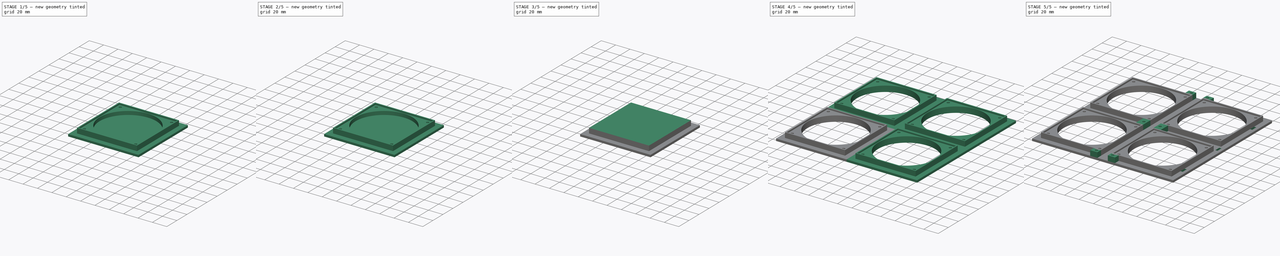
[diagram: build sequence overview — one tinted view per stage of 5, left to right]
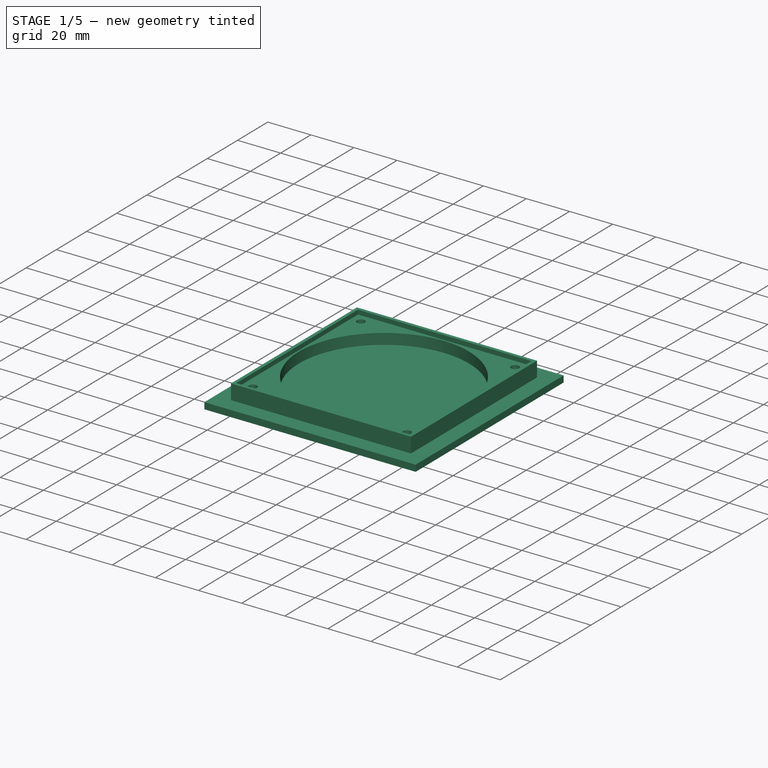
[diagram: stage 1 of 5 — iso view after this stage's code; geometry added in this stage tinted green]
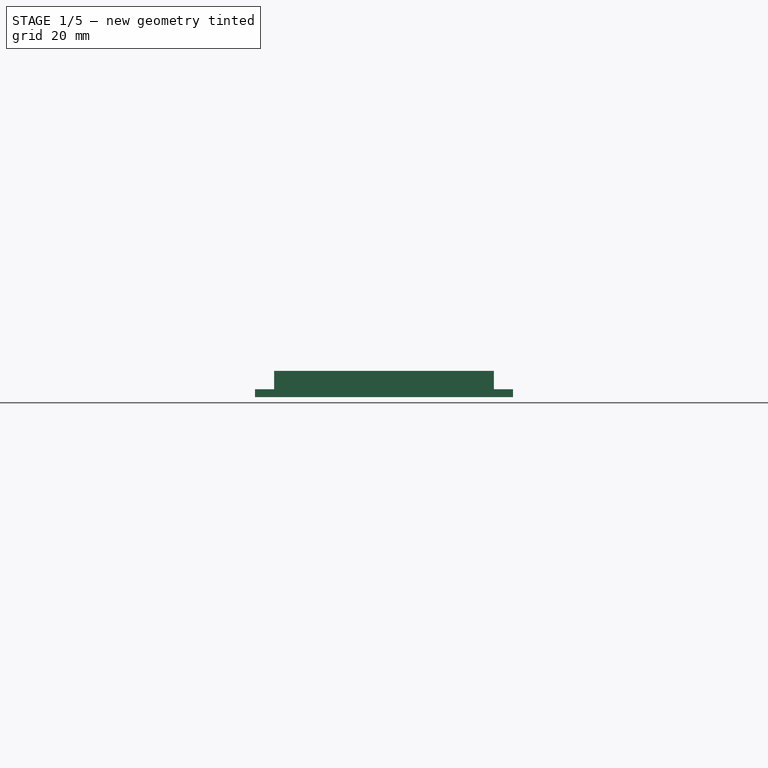
[diagram: stage 1 of 5 — front view after this stage's code; geometry added in this stage tinted green]
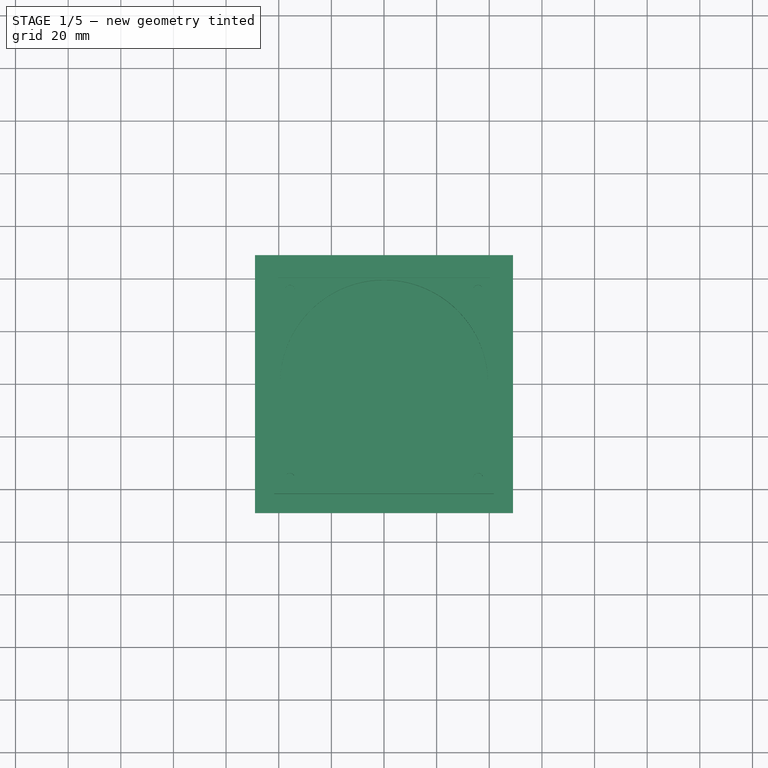
[diagram: stage 1 of 5 — top view after this stage's code; geometry added in this stage tinted green]
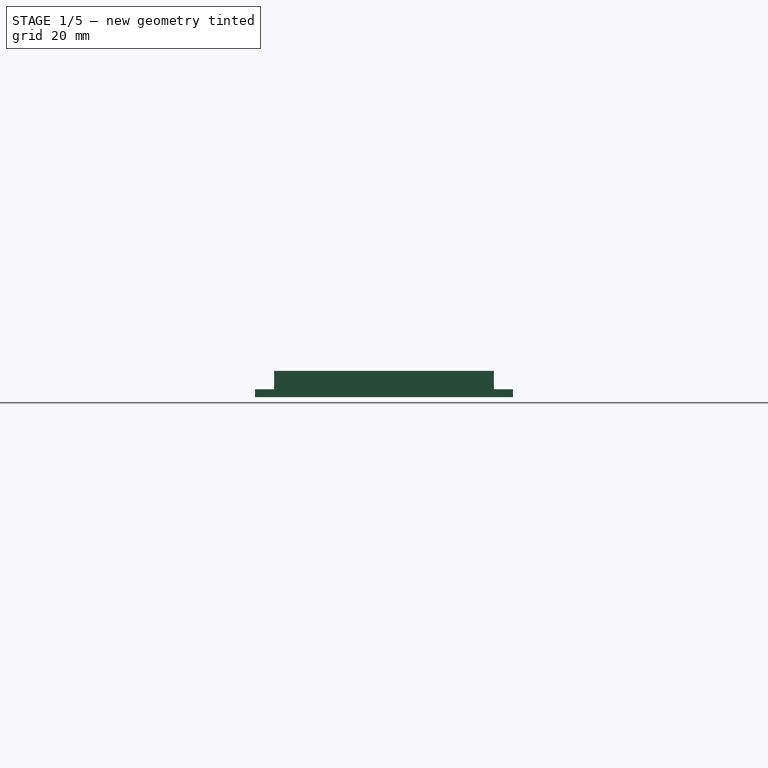
[diagram: stage 1 of 5 — right view after this stage's code; geometry added in this stage tinted green]
FCSTD DOCUMENT  (FreeCAD 0.19R19180 (Git))
Label: fan_holder_mk2
License: All rights reserved
LicenseURL: http://en.wikipedia.org/wiki/All_rights_reserved
objects: Sketcher::SketchObject×30, PartDesign::Pocket×19, PartDesign::Pad×11, PartDesign::Chamfer×6, PartDesign::Body×5, Part::MultiFuse×1, PartDesign::FeatureBase×1
note: 103 computed .brp shape members not serialized (recipe doc carries the construction recipe); baked Part::Feature solids carry a one-line shape summary decoded from their .brp

FEATURE [PartDesign::Body] Body001
  Group = -> [Sketch009,Pad003,Sketch006,Pad002,Sketch011,Pocket007,Sketch007,Pocket004,Sketch010,Pocket006,Sketch008,Pocket005,Chamfer001]
  Origin = -> Origin001
  Placement = pos=(98,0,0) rot=(0,0,1;0rad)
  Tip = -> Chamfer001
FEATURE [Sketcher::SketchObject] Sketch015
  MapMode = 5
  Support = -> [XY_Plane002]
  sketch-geometry (4):
    g0: LineSegment StartX=-49 StartY=49 StartZ=0 EndX=49 EndY=49 EndZ=0
    g1: LineSegment StartX=49 StartY=49 StartZ=0 EndX=49 EndY=-49 EndZ=0
    g2: LineSegment StartX=49 StartY=-49 StartZ=0 EndX=-49 EndY=-49 EndZ=0
    g3: LineSegment StartX=-49 StartY=-49 StartZ=0 EndX=-49 EndY=49 EndZ=0
  constraints (12):
    c: Coincident(g0,g1)
    c: Coincident(g1,g2)
    c: Coincident(g2,g3)
    c: Coincident(g3,g0)
    c: Horizontal(g0)
    c: Horizontal(g2)
    c: Vertical(g1)
    c: Vertical(g3)
    c: Equal(g0,g1)
    c: DistanceX(g0,g-1) = 49
    c: DistanceX(g0,g0) = 98
    c: DistanceY(g-1,g0) = 49
FEATURE [PartDesign::Pad] Pad005
  Length = 3
  Length2 = 100
  Profile = -> Sketch015
  Type = 0
FEATURE [PartDesign::Body] Body002
  Group = -> [Sketch015,Pad005,Sketch012,Pad004,Sketch017,Pocket011,Sketch013,Pocket008,Sketch016,Pocket010,Sketch014,Pocket009,Chamfer002]
  Origin = -> Origin002
  Placement = pos=(0,98,0) rot=(0,0,1;0rad)
  Tip = -> Chamfer002
FEATURE [Sketcher::SketchObject] Sketch021
  MapMode = 5
  Support = -> [XY_Plane003]
  sketch-geometry (4):
    g0: LineSegment StartX=-49 StartY=49 StartZ=0 EndX=49 EndY=49 EndZ=0
    g1: LineSegment StartX=49 StartY=49 StartZ=0 EndX=49 EndY=-49 EndZ=0
    g2: LineSegment StartX=49 StartY=-49 StartZ=0 EndX=-49 EndY=-49 EndZ=0
    g3: LineSegment StartX=-49 StartY=-49 StartZ=0 EndX=-49 EndY=49 EndZ=0
  constraints (12):
    c: Coincident(g0,g1)
    c: Coincident(g1,g2)
    c: Coincident(g2,g3)
    c: Coincident(g3,g0)
    c: Horizontal(g0)
    c: Horizontal(g2)
    c: Vertical(g1)
    c: Vertical(g3)
    c: Equal(g0,g1)
    c: DistanceX(g0,g-1) = 49
    c: DistanceX(g0,g0) = 98
    c: DistanceY(g-1,g0) = 49
FEATURE [PartDesign::Pad] Pad007
  Length = 3
  Length2 = 100
  Profile = -> Sketch021
  Type = 0
FEATURE [Sketcher::SketchObject] Sketch018
  MapMode = 5
  Placement = pos=(0,0,3) rot=(0,0,1;0rad)
  Support = -> [Pad007]
  sketch-geometry (4):
    g0: LineSegment StartX=-41.75 StartY=41.75 StartZ=0 EndX=41.75 EndY=41.75 EndZ=0
    g1: LineSegment StartX=41.75 StartY=41.75 StartZ=0 EndX=41.75 EndY=-41.75 EndZ=0
    g2: LineSegment StartX=41.75 StartY=-41.75 StartZ=0 EndX=-41.75 EndY=-41.75 EndZ=0
    g3: LineSegment StartX=-41.75 StartY=-41.75 StartZ=0 EndX=-41.75 EndY=41.75 EndZ=0
  constraints (12):
    c: Coincident(g0,g1)
    c: Coincident(g1,g2)
    c: Coincident(g2,g3)
    c: Coincident(g3,g0)
    c: Horizontal(g0)
    c: Horizontal(g2)
    c: Vertical(g1)
    c: Vertical(g3)
    c: Equal(g1,g0)
    c: DistanceX(g0,g0) = 83.5
    c: DistanceX(g0,g-1) = 41.75
    c: DistanceY(g-1,g0) = 41.75
FEATURE [PartDesign::Pad] Pad006
  BaseFeature = -> Pad007
  Length = 7
  Length2 = 100
  Profile = -> Sketch018
  Type = 0
FEATURE [Sketcher::SketchObject] Sketch023
  MapMode = 5
  Placement = pos=(0,0,10) rot=(0,0,1;0rad)
  Support = -> [Pad006]
  sketch-geometry (1):
    g0: Circle CenterX=0 CenterY=0 CenterZ=0 NormalX=0 NormalY=0 NormalZ=1 AngleXU=0 Radius=39.5
  constraints (2):
    c: Coincident(g0,g-1)
    c: Diameter(g0) = 79
FEATURE [PartDesign::Pocket] Pocket015
  BaseFeature = -> Pad006
  Length = 10
  Length2 = 100
  Profile = -> Sketch023
  Type = 0
FEATURE [Sketcher::SketchObject] Sketch019
  MapMode = 5
  Placement = pos=(0,0,10) rot=(0,0,1;0rad)
  Support = -> [Pocket015]
  sketch-geometry (4):
    g0: LineSegment StartX=-40.25 StartY=40.25 StartZ=0 EndX=40.25 EndY=40.25 EndZ=0
    g1: LineSegment StartX=40.25 StartY=40.25 StartZ=0 EndX=40.25 EndY=-40.25 EndZ=0
    g2: LineSegment StartX=40.25 StartY=-40.25 StartZ=0 EndX=-40.25 EndY=-40.25 EndZ=0
    g3: LineSegment StartX=-40.25 StartY=-40.25 StartZ=0 EndX=-40.25 EndY=40.25 EndZ=0
  constraints (12):
    c: Coincident(g0,g1)
    c: Coincident(g1,g2)
    c: Coincident(g2,g3)
    c: Coincident(g3,g0)
    c: Horizontal(g0)
    c: Horizontal(g2)
    c: Vertical(g1)
    c: Vertical(g3)
    c: Equal(g0,g1)
    c: DistanceX(g0,g0) = 80.5
    c: DistanceX(g0,g-1) = 40.25
    c: DistanceY(g-1,g0) = 40.25
FEATURE [PartDesign::Pocket] Pocket012
  BaseFeature = -> Pocket015
  Length = 2
  Length2 = 100
  Profile = -> Sketch019
  Type = 0
FEATURE [Sketcher::SketchObject] Sketch022
  MapMode = 5
  Placement = pos=(0,0,8) rot=(0,0,1;0rad)
  Support = -> [Pocket012]
  sketch-geometry (4):
    g0: Circle CenterX=-35.75 CenterY=35.75 CenterZ=0 NormalX=0 NormalY=0 NormalZ=1 AngleXU=0 Radius=1.85
    g1: Circle CenterX=35.75 CenterY=35.75 CenterZ=0 NormalX=0 NormalY=0 NormalZ=1 AngleXU=0 Radius=1.85
    g2: Circle CenterX=35.75 CenterY=-35.75 CenterZ=0 NormalX=0 NormalY=0 NormalZ=1 AngleXU=0 Radius=1.85
    g3: Circle CenterX=-35.75 CenterY=-35.75 CenterZ=0 NormalX=0 NormalY=0 NormalZ=1 AngleXU=0 Radius=1.85
  constraints (12):
    c: Diameter(g2) = 3.7
    c: Equal(g2,g3)
    c: Equal(g2,g0)
    c: Equal(g2,g1)
    c: Horizontal(g3,g2)
    c: Horizontal(g0,g1)
    c: Vertical(g0,g3)
    c: Vertical(g1,g2)
    c: DistanceY(g3,g-1) = 35.75
    c: DistanceY(g-1,g0) = 35.75
    c: DistanceX(g0,g-1) = 35.75
    c: DistanceX(g-1,g1) = 35.75
FEATURE [PartDesign::Pocket] Pocket014
  BaseFeature = -> Pocket012
  Length = 8
  Length2 = 100
  Profile = -> Sketch022
  Type = 0
FEATURE [Sketcher::SketchObject] Sketch020
  MapMode = 5
  Placement = pos=(0,0,0) rot=(1,0,0;3.14159rad)
  Support = -> [Pocket014]
  sketch-geometry (4):
    g0: Circle CenterX=-35.75 CenterY=35.75 CenterZ=0 NormalX=0 NormalY=0 NormalZ=1 AngleXU=0 Radius=2.75
    g1: Circle CenterX=35.75 CenterY=35.75 CenterZ=0 NormalX=0 NormalY=0 NormalZ=1 AngleXU=0 Radius=2.75
    g2: Circle CenterX=35.75 CenterY=-35.75 CenterZ=0 NormalX=0 NormalY=0 NormalZ=1 AngleXU=0 Radius=2.75
    g3: Circle CenterX=-35.75 CenterY=-35.75 CenterZ=0 NormalX=0 NormalY=0 NormalZ=1 AngleXU=0 Radius=2.75
  constraints (12):
    c: Horizontal(g3,g2)
    c: Horizontal(g0,g1)
    c: Vertical(g3,g0)
    c: Vertical(g2,g1)
    c: DistanceX(g0,g-1) = 35.75
    c: DistanceX(g-1,g1) = 35.75
    c: DistanceY(g2,g-1) = 35.75
    c: DistanceY(g-1,g1) = 35.75
    c: Diameter(g3) = 5.5
    c: Equal(g3,g2)
    c: Equal(g3,g1)
    c: Equal(g3,g0)
FEATURE [PartDesign::Pocket] Pocket013
  BaseFeature = -> Pocket014
  Length = 5
  Length2 = 100
  Profile = -> Sketch020
  Type = 0
FEATURE [PartDesign::Chamfer] Chamfer003
  Base = -> Pocket013 [Edge14,Edge12,Edge13,Edge16]
  BaseFeature = -> Pocket013
  Size = 0.5
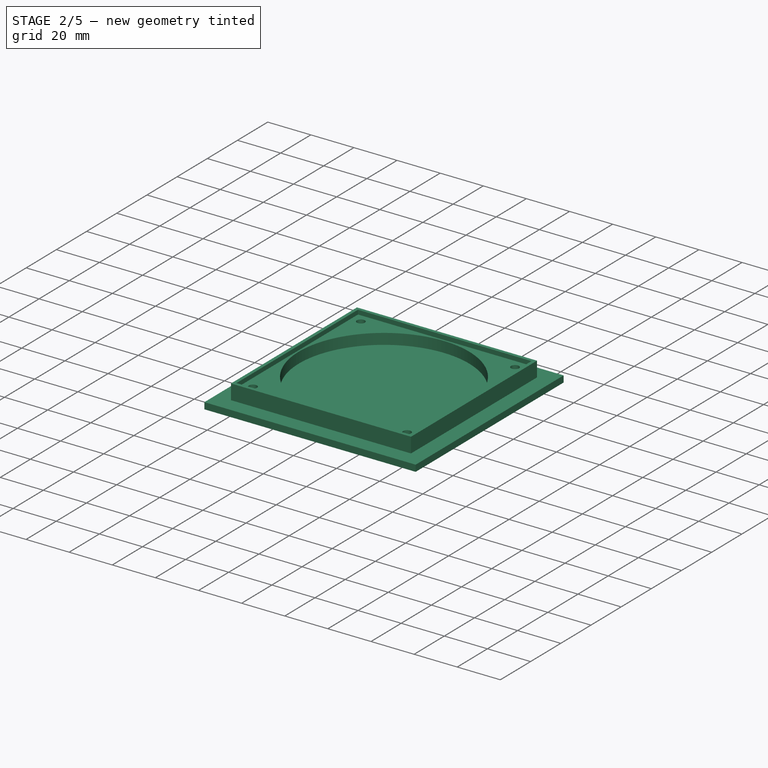
[diagram: stage 2 of 5 — iso view after this stage's code; geometry added in this stage tinted green]
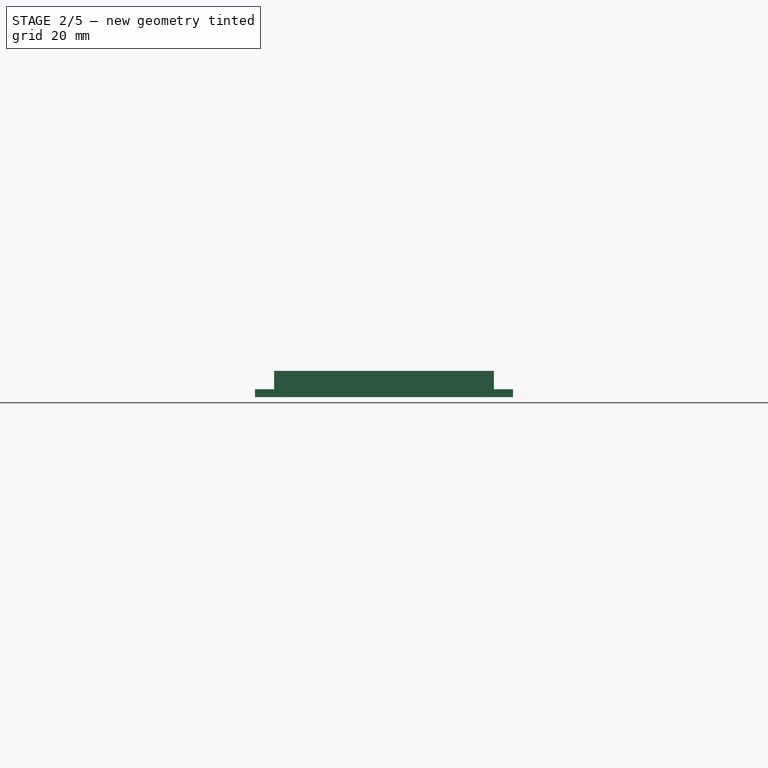
[diagram: stage 2 of 5 — front view after this stage's code; geometry added in this stage tinted green]
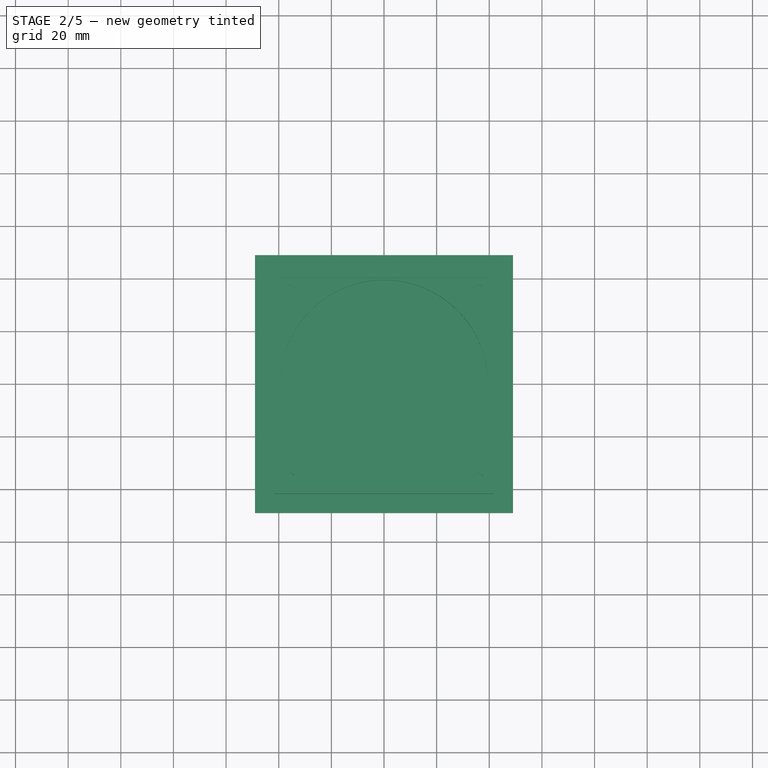
[diagram: stage 2 of 5 — top view after this stage's code; geometry added in this stage tinted green]
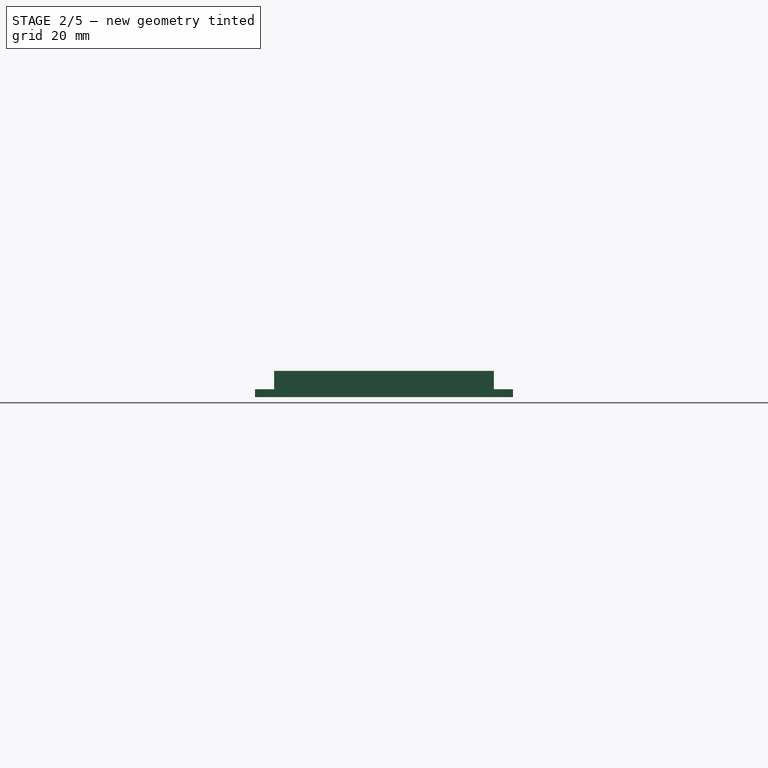
[diagram: stage 2 of 5 — right view after this stage's code; geometry added in this stage tinted green]
FEATURE [PartDesign::Body] Body
  Group = -> [Sketch,Pad,Sketch001,Pad001,Sketch002,Pocket,Sketch003,Pocket001,Sketch004,Pocket002,Sketch005,Pocket003,Chamfer]
  Origin = -> Origin
  Tip = -> Chamfer
FEATURE [Sketcher::SketchObject] Sketch009
  MapMode = 5
  Support = -> [XY_Plane001]
  sketch-geometry (4):
    g0: LineSegment StartX=-49 StartY=49 StartZ=0 EndX=49 EndY=49 EndZ=0
    g1: LineSegment StartX=49 StartY=49 StartZ=0 EndX=49 EndY=-49 EndZ=0
    g2: LineSegment StartX=49 StartY=-49 StartZ=0 EndX=-49 EndY=-49 EndZ=0
    g3: LineSegment StartX=-49 StartY=-49 StartZ=0 EndX=-49 EndY=49 EndZ=0
  constraints (12):
    c: Coincident(g0,g1)
    c: Coincident(g1,g2)
    c: Coincident(g2,g3)
    c: Coincident(g3,g0)
    c: Horizontal(g0)
    c: Horizontal(g2)
    c: Vertical(g1)
    c: Vertical(g3)
    c: Equal(g0,g1)
    c: DistanceX(g0,g-1) = 49
    c: DistanceX(g0,g0) = 98
    c: DistanceY(g-1,g0) = 49
FEATURE [PartDesign::Pad] Pad003
  Length = 3
  Length2 = 100
  Profile = -> Sketch009
  Type = 0
FEATURE [Sketcher::SketchObject] Sketch012
  MapMode = 5
  Placement = pos=(0,0,3) rot=(0,0,1;0rad)
  Support = -> [Pad005]
  sketch-geometry (4):
    g0: LineSegment StartX=-41.75 StartY=41.75 StartZ=0 EndX=41.75 EndY=41.75 EndZ=0
    g1: LineSegment StartX=41.75 StartY=41.75 StartZ=0 EndX=41.75 EndY=-41.75 EndZ=0
    g2: LineSegment StartX=41.75 StartY=-41.75 StartZ=0 EndX=-41.75 EndY=-41.75 EndZ=0
    g3: LineSegment StartX=-41.75 StartY=-41.75 StartZ=0 EndX=-41.75 EndY=41.75 EndZ=0
  constraints (12):
    c: Coincident(g0,g1)
    c: Coincident(g1,g2)
    c: Coincident(g2,g3)
    c: Coincident(g3,g0)
    c: Horizontal(g0)
    c: Horizontal(g2)
    c: Vertical(g1)
    c: Vertical(g3)
    c: Equal(g1,g0)
    c: DistanceX(g0,g0) = 83.5
    c: DistanceX(g0,g-1) = 41.75
    c: DistanceY(g-1,g0) = 41.75
FEATURE [PartDesign::Pad] Pad004
  BaseFeature = -> Pad005
  Length = 7
  Length2 = 100
  Profile = -> Sketch012
  Type = 0
FEATURE [Sketcher::SketchObject] Sketch017
  MapMode = 5
  Placement = pos=(0,0,10) rot=(0,0,1;0rad)
  Support = -> [Pad004]
  sketch-geometry (1):
    g0: Circle CenterX=0 CenterY=0 CenterZ=0 NormalX=0 NormalY=0 NormalZ=1 AngleXU=0 Radius=39.5
  constraints (2):
    c: Coincident(g0,g-1)
    c: Diameter(g0) = 79
FEATURE [PartDesign::Pocket] Pocket011
  BaseFeature = -> Pad004
  Length = 10
  Length2 = 100
  Profile = -> Sketch017
  Type = 0
FEATURE [Sketcher::SketchObject] Sketch013
  MapMode = 5
  Placement = pos=(0,0,10) rot=(0,0,1;0rad)
  Support = -> [Pocket011]
  sketch-geometry (4):
    g0: LineSegment StartX=-40.25 StartY=40.25 StartZ=0 EndX=40.25 EndY=40.25 EndZ=0
    g1: LineSegment StartX=40.25 StartY=40.25 StartZ=0 EndX=40.25 EndY=-40.25 EndZ=0
    g2: LineSegment StartX=40.25 StartY=-40.25 StartZ=0 EndX=-40.25 EndY=-40.25 EndZ=0
    g3: LineSegment StartX=-40.25 StartY=-40.25 StartZ=0 EndX=-40.25 EndY=40.25 EndZ=0
  constraints (12):
    c: Coincident(g0,g1)
    c: Coincident(g1,g2)
    c: Coincident(g2,g3)
    c: Coincident(g3,g0)
    c: Horizontal(g0)
    c: Horizontal(g2)
    c: Vertical(g1)
    c: Vertical(g3)
    c: Equal(g0,g1)
    c: DistanceX(g0,g0) = 80.5
    c: DistanceX(g0,g-1) = 40.25
    c: DistanceY(g-1,g0) = 40.25
FEATURE [PartDesign::Pocket] Pocket008
  BaseFeature = -> Pocket011
  Length = 2
  Length2 = 100
  Profile = -> Sketch013
  Type = 0
FEATURE [Sketcher::SketchObject] Sketch016
  MapMode = 5
  Placement = pos=(0,0,8) rot=(0,0,1;0rad)
  Support = -> [Pocket008]
  sketch-geometry (4):
    g0: Circle CenterX=-35.75 CenterY=35.75 CenterZ=0 NormalX=0 NormalY=0 NormalZ=1 AngleXU=0 Radius=1.85
    g1: Circle CenterX=35.75 CenterY=35.75 CenterZ=0 NormalX=0 NormalY=0 NormalZ=1 AngleXU=0 Radius=1.85
    g2: Circle CenterX=35.75 CenterY=-35.75 CenterZ=0 NormalX=0 NormalY=0 NormalZ=1 AngleXU=0 Radius=1.85
    g3: Circle CenterX=-35.75 CenterY=-35.75 CenterZ=0 NormalX=0 NormalY=0 NormalZ=1 AngleXU=0 Radius=1.85
  constraints (12):
    c: Diameter(g2) = 3.7
    c: Equal(g2,g3)
    c: Equal(g2,g0)
    c: Equal(g2,g1)
    c: Horizontal(g3,g2)
    c: Horizontal(g0,g1)
    c: Vertical(g0,g3)
    c: Vertical(g1,g2)
    c: DistanceY(g3,g-1) = 35.75
    c: DistanceY(g-1,g0) = 35.75
    c: DistanceX(g0,g-1) = 35.75
    c: DistanceX(g-1,g1) = 35.75
FEATURE [PartDesign::Pocket] Pocket010
  BaseFeature = -> Pocket008
  Length = 8
  Length2 = 100
  Profile = -> Sketch016
  Type = 0
FEATURE [Sketcher::SketchObject] Sketch014
  MapMode = 5
  Placement = pos=(0,0,0) rot=(1,0,0;3.14159rad)
  Support = -> [Pocket010]
  sketch-geometry (4):
    g0: Circle CenterX=-35.75 CenterY=35.75 CenterZ=0 NormalX=0 NormalY=0 NormalZ=1 AngleXU=0 Radius=2.75
    g1: Circle CenterX=35.75 CenterY=35.75 CenterZ=0 NormalX=0 NormalY=0 NormalZ=1 AngleXU=0 Radius=2.75
    g2: Circle CenterX=35.75 CenterY=-35.75 CenterZ=0 NormalX=0 NormalY=0 NormalZ=1 AngleXU=0 Radius=2.75
    g3: Circle CenterX=-35.75 CenterY=-35.75 CenterZ=0 NormalX=0 NormalY=0 NormalZ=1 AngleXU=0 Radius=2.75
  constraints (12):
    c: Horizontal(g3,g2)
    c: Horizontal(g0,g1)
    c: Vertical(g3,g0)
    c: Vertical(g2,g1)
    c: DistanceX(g0,g-1) = 35.75
    c: DistanceX(g-1,g1) = 35.75
    c: DistanceY(g2,g-1) = 35.75
    c: DistanceY(g-1,g1) = 35.75
    c: Diameter(g3) = 5.5
    c: Equal(g3,g2)
    c: Equal(g3,g1)
    c: Equal(g3,g0)
FEATURE [PartDesign::Pocket] Pocket009
  BaseFeature = -> Pocket010
  Length = 5
  Length2 = 100
  Profile = -> Sketch014
  Type = 0
FEATURE [PartDesign::Chamfer] Chamfer002
  Base = -> Pocket009 [Edge14,Edge12,Edge13,Edge16]
  BaseFeature = -> Pocket009
  Size = 0.5
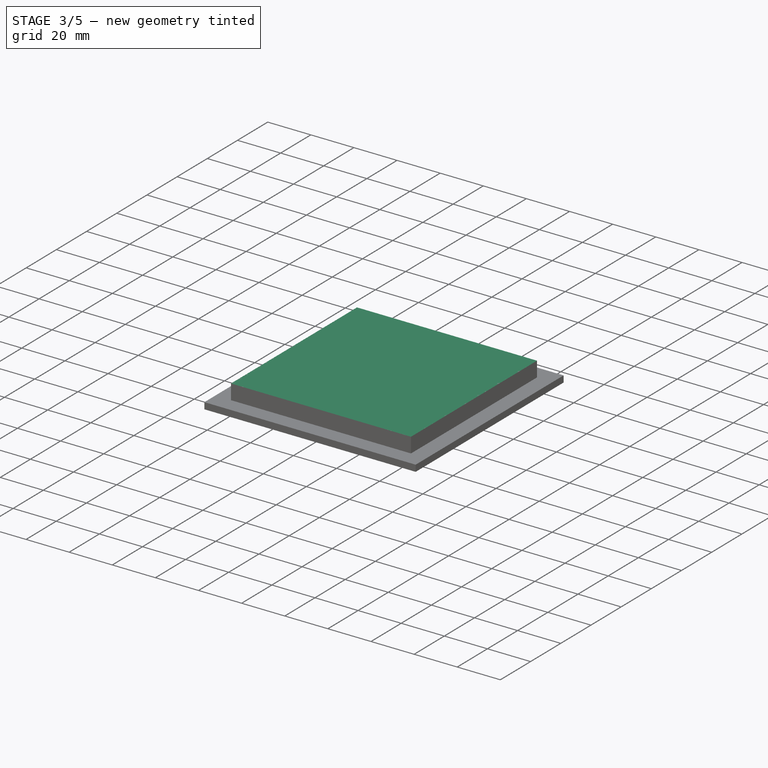
[diagram: stage 3 of 5 — iso view after this stage's code; geometry added in this stage tinted green]
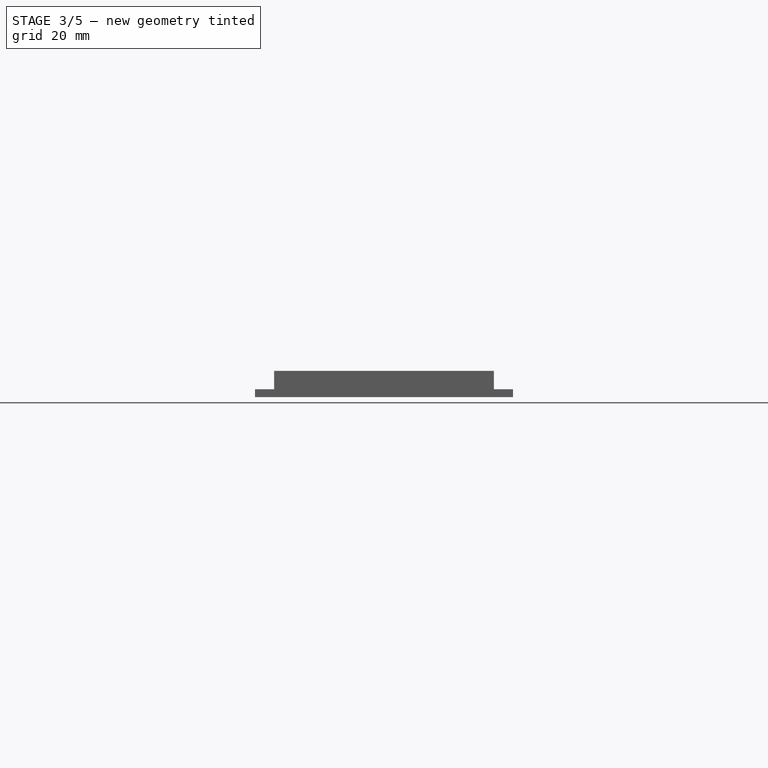
[diagram: stage 3 of 5 — front view after this stage's code; geometry added in this stage tinted green]
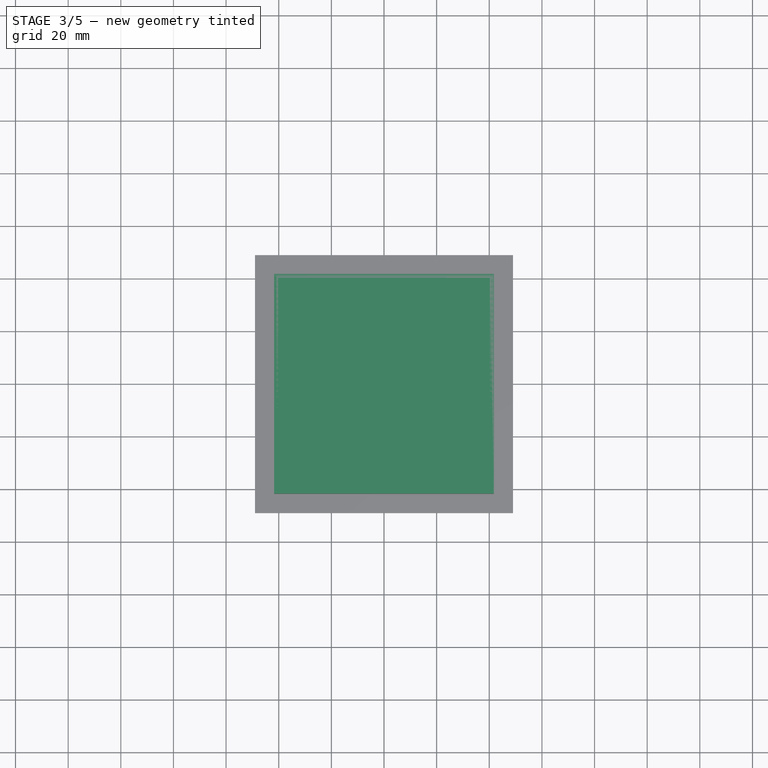
[diagram: stage 3 of 5 — top view after this stage's code; geometry added in this stage tinted green]
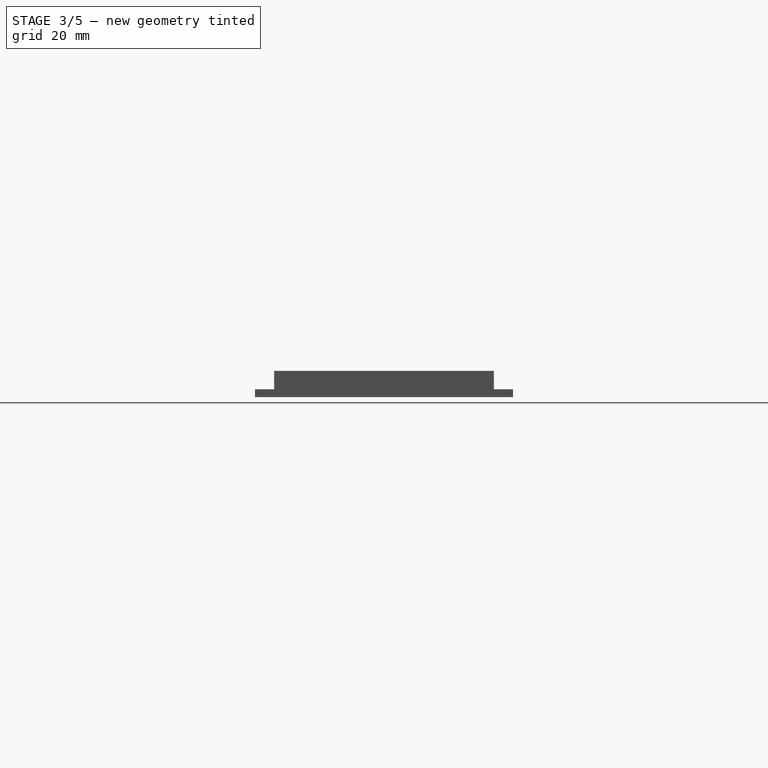
[diagram: stage 3 of 5 — right view after this stage's code; geometry added in this stage tinted green]
FEATURE [Sketcher::SketchObject] Sketch
  MapMode = 5
  Support = -> [XY_Plane]
  sketch-geometry (4):
    g0: LineSegment StartX=-49 StartY=49 StartZ=0 EndX=49 EndY=49 EndZ=0
    g1: LineSegment StartX=49 StartY=49 StartZ=0 EndX=49 EndY=-49 EndZ=0
    g2: LineSegment StartX=49 StartY=-49 StartZ=0 EndX=-49 EndY=-49 EndZ=0
    g3: LineSegment StartX=-49 StartY=-49 StartZ=0 EndX=-49 EndY=49 EndZ=0
  constraints (12):
    c: Coincident(g0,g1)
    c: Coincident(g1,g2)
    c: Coincident(g2,g3)
    c: Coincident(g3,g0)
    c: Horizontal(g0)
    c: Horizontal(g2)
    c: Vertical(g1)
    c: Vertical(g3)
    c: Equal(g0,g1)
    c: DistanceX(g0,g-1) = 49
    c: DistanceX(g0,g0) = 98
    c: DistanceY(g-1,g0) = 49
FEATURE [PartDesign::Pad] Pad
  Length = 3
  Length2 = 100
  Profile = -> Sketch
  Type = 0
FEATURE [Sketcher::SketchObject] Sketch001
  MapMode = 5
  Placement = pos=(0,0,3) rot=(0,0,1;0rad)
  Support = -> [Pad]
  sketch-geometry (4):
    g0: LineSegment StartX=-41.75 StartY=41.75 StartZ=0 EndX=41.75 EndY=41.75 EndZ=0
    g1: LineSegment StartX=41.75 StartY=41.75 StartZ=0 EndX=41.75 EndY=-41.75 EndZ=0
    g2: LineSegment StartX=41.75 StartY=-41.75 StartZ=0 EndX=-41.75 EndY=-41.75 EndZ=0
    g3: LineSegment StartX=-41.75 StartY=-41.75 StartZ=0 EndX=-41.75 EndY=41.75 EndZ=0
  constraints (12):
    c: Coincident(g0,g1)
    c: Coincident(g1,g2)
    c: Coincident(g2,g3)
    c: Coincident(g3,g0)
    c: Horizontal(g0)
    c: Horizontal(g2)
    c: Vertical(g1)
    c: Vertical(g3)
    c: Equal(g1,g0)
    c: DistanceX(g0,g0) = 83.5
    c: DistanceX(g0,g-1) = 41.75
    c: DistanceY(g-1,g0) = 41.75
FEATURE [PartDesign::Pad] Pad001
  BaseFeature = -> Pad
  Length = 7
  Length2 = 100
  Profile = -> Sketch001
  Type = 0
FEATURE [Sketcher::SketchObject] Sketch006
  MapMode = 5
  Placement = pos=(0,0,3) rot=(0,0,1;0rad)
  Support = -> [Pad003]
  sketch-geometry (4):
    g0: LineSegment StartX=-41.75 StartY=41.75 StartZ=0 EndX=41.75 EndY=41.75 EndZ=0
    g1: LineSegment StartX=41.75 StartY=41.75 StartZ=0 EndX=41.75 EndY=-41.75 EndZ=0
    g2: LineSegment StartX=41.75 StartY=-41.75 StartZ=0 EndX=-41.75 EndY=-41.75 EndZ=0
    g3: LineSegment StartX=-41.75 StartY=-41.75 StartZ=0 EndX=-41.75 EndY=41.75 EndZ=0
  constraints (12):
    c: Coincident(g0,g1)
    c: Coincident(g1,g2)
    c: Coincident(g2,g3)
    c: Coincident(g3,g0)
    c: Horizontal(g0)
    c: Horizontal(g2)
    c: Vertical(g1)
    c: Vertical(g3)
    c: Equal(g1,g0)
    c: DistanceX(g0,g0) = 83.5
    c: DistanceX(g0,g-1) = 41.75
    c: DistanceY(g-1,g0) = 41.75
FEATURE [PartDesign::Pad] Pad002
  BaseFeature = -> Pad003
  Length = 7
  Length2 = 100
  Profile = -> Sketch006
  Type = 0
FEATURE [Sketcher::SketchObject] Sketch011
  MapMode = 5
  Placement = pos=(0,0,10) rot=(0,0,1;0rad)
  Support = -> [Pad002]
  sketch-geometry (1):
    g0: Circle CenterX=0 CenterY=0 CenterZ=0 NormalX=0 NormalY=0 NormalZ=1 AngleXU=0 Radius=39.5
  constraints (2):
    c: Coincident(g0,g-1)
    c: Diameter(g0) = 79
FEATURE [PartDesign::Pocket] Pocket007
  BaseFeature = -> Pad002
  Length = 10
  Length2 = 100
  Profile = -> Sketch011
  Type = 0
FEATURE [Sketcher::SketchObject] Sketch007
  MapMode = 5
  Placement = pos=(0,0,10) rot=(0,0,1;0rad)
  Support = -> [Pocket007]
  sketch-geometry (4):
    g0: LineSegment StartX=-40.25 StartY=40.25 StartZ=0 EndX=40.25 EndY=40.25 EndZ=0
    g1: LineSegment StartX=40.25 StartY=40.25 StartZ=0 EndX=40.25 EndY=-40.25 EndZ=0
    g2: LineSegment StartX=40.25 StartY=-40.25 StartZ=0 EndX=-40.25 EndY=-40.25 EndZ=0
    g3: LineSegment StartX=-40.25 StartY=-40.25 StartZ=0 EndX=-40.25 EndY=40.25 EndZ=0
  constraints (12):
    c: Coincident(g0,g1)
    c: Coincident(g1,g2)
    c: Coincident(g2,g3)
    c: Coincident(g3,g0)
    c: Horizontal(g0)
    c: Horizontal(g2)
    c: Vertical(g1)
    c: Vertical(g3)
    c: Equal(g0,g1)
    c: DistanceX(g0,g0) = 80.5
    c: DistanceX(g0,g-1) = 40.25
    c: DistanceY(g-1,g0) = 40.25
FEATURE [PartDesign::Pocket] Pocket004
  BaseFeature = -> Pocket007
  Length = 2
  Length2 = 100
  Profile = -> Sketch007
  Type = 0
FEATURE [Sketcher::SketchObject] Sketch010
  MapMode = 5
  Placement = pos=(0,0,8) rot=(0,0,1;0rad)
  Support = -> [Pocket004]
  sketch-geometry (4):
    g0: Circle CenterX=-35.75 CenterY=35.75 CenterZ=0 NormalX=0 NormalY=0 NormalZ=1 AngleXU=0 Radius=1.85
    g1: Circle CenterX=35.75 CenterY=35.75 CenterZ=0 NormalX=0 NormalY=0 NormalZ=1 AngleXU=0 Radius=1.85
    g2: Circle CenterX=35.75 CenterY=-35.75 CenterZ=0 NormalX=0 NormalY=0 NormalZ=1 AngleXU=0 Radius=1.85
    g3: Circle CenterX=-35.75 CenterY=-35.75 CenterZ=0 NormalX=0 NormalY=0 NormalZ=1 AngleXU=0 Radius=1.85
  constraints (12):
    c: Diameter(g2) = 3.7
    c: Equal(g2,g3)
    c: Equal(g2,g0)
    c: Equal(g2,g1)
    c: Horizontal(g3,g2)
    c: Horizontal(g0,g1)
    c: Vertical(g0,g3)
    c: Vertical(g1,g2)
    c: DistanceY(g3,g-1) = 35.75
    c: DistanceY(g-1,g0) = 35.75
    c: DistanceX(g0,g-1) = 35.75
    c: DistanceX(g-1,g1) = 35.75
FEATURE [PartDesign::Pocket] Pocket006
  BaseFeature = -> Pocket004
  Length = 8
  Length2 = 100
  Profile = -> Sketch010
  Type = 0
FEATURE [Sketcher::SketchObject] Sketch008
  MapMode = 5
  Placement = pos=(0,0,0) rot=(1,0,0;3.14159rad)
  Support = -> [Pocket006]
  sketch-geometry (4):
    g0: Circle CenterX=-35.75 CenterY=35.75 CenterZ=0 NormalX=0 NormalY=0 NormalZ=1 AngleXU=0 Radius=2.75
    g1: Circle CenterX=35.75 CenterY=35.75 CenterZ=0 NormalX=0 NormalY=0 NormalZ=1 AngleXU=0 Radius=2.75
    g2: Circle CenterX=35.75 CenterY=-35.75 CenterZ=0 NormalX=0 NormalY=0 NormalZ=1 AngleXU=0 Radius=2.75
    g3: Circle CenterX=-35.75 CenterY=-35.75 CenterZ=0 NormalX=0 NormalY=0 NormalZ=1 AngleXU=0 Radius=2.75
  constraints (12):
    c: Horizontal(g3,g2)
    c: Horizontal(g0,g1)
    c: Vertical(g3,g0)
    c: Vertical(g2,g1)
    c: DistanceX(g0,g-1) = 35.75
    c: DistanceX(g-1,g1) = 35.75
    c: DistanceY(g2,g-1) = 35.75
    c: DistanceY(g-1,g1) = 35.75
    c: Diameter(g3) = 5.5
    c: Equal(g3,g2)
    c: Equal(g3,g1)
    c: Equal(g3,g0)
FEATURE [PartDesign::Pocket] Pocket005
  BaseFeature = -> Pocket006
  Length = 5
  Length2 = 100
  Profile = -> Sketch008
  Type = 0
FEATURE [PartDesign::Chamfer] Chamfer001
  Base = -> Pocket005 [Edge14,Edge12,Edge13,Edge16]
  BaseFeature = -> Pocket005
  Size = 0.5
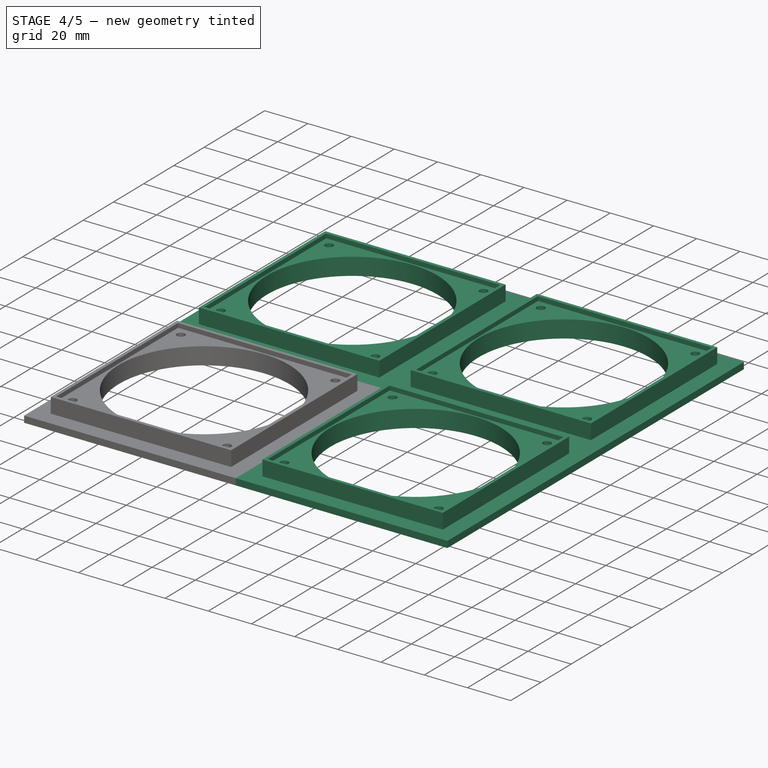
[diagram: stage 4 of 5 — iso view after this stage's code; geometry added in this stage tinted green]
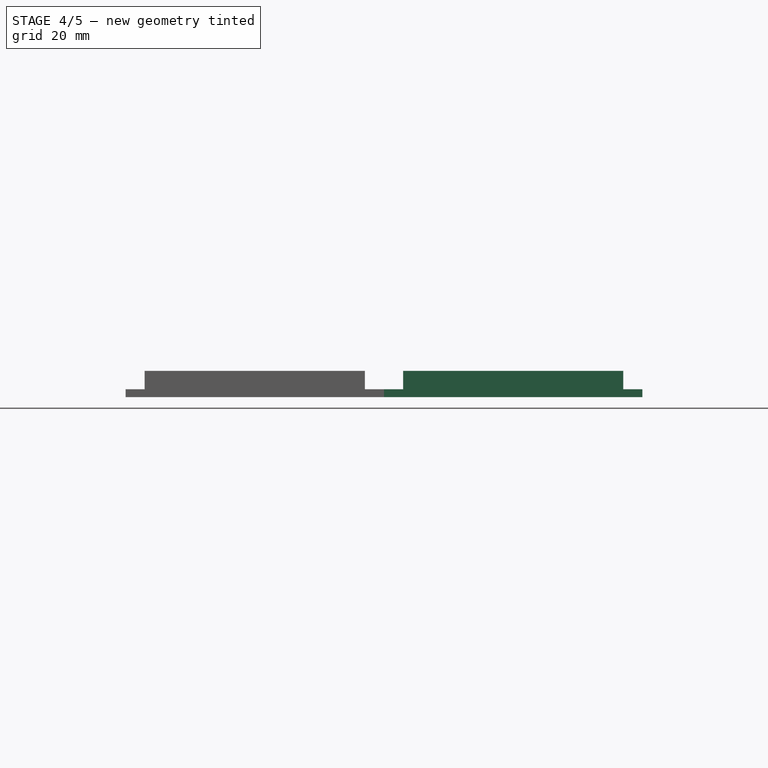
[diagram: stage 4 of 5 — front view after this stage's code; geometry added in this stage tinted green]
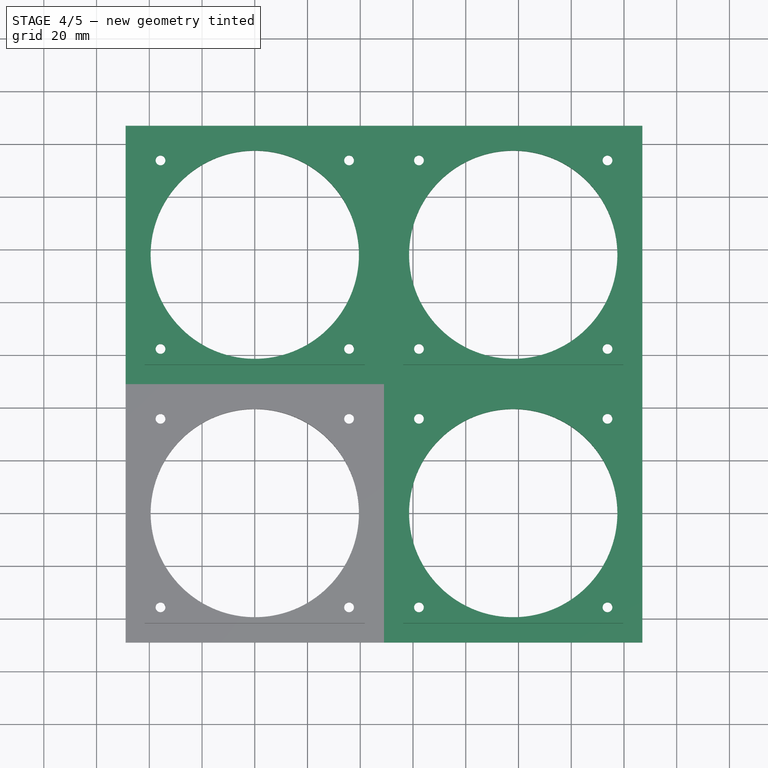
[diagram: stage 4 of 5 — top view after this stage's code; geometry added in this stage tinted green]
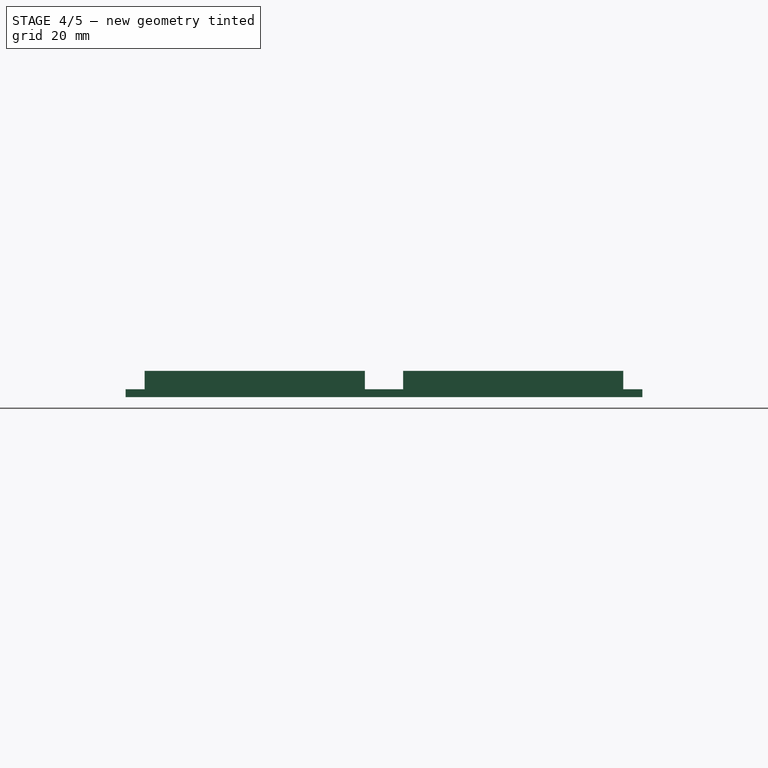
[diagram: stage 4 of 5 — right view after this stage's code; geometry added in this stage tinted green]
FEATURE [Sketcher::SketchObject] Sketch002
  MapMode = 5
  Placement = pos=(0,0,10) rot=(0,0,1;0rad)
  Support = -> [Pad001]
  sketch-geometry (1):
    g0: Circle CenterX=0 CenterY=0 CenterZ=0 NormalX=0 NormalY=0 NormalZ=1 AngleXU=0 Radius=39.5
  constraints (2):
    c: Coincident(g0,g-1)
    c: Diameter(g0) = 79
FEATURE [PartDesign::Pocket] Pocket
  BaseFeature = -> Pad001
  Length = 10
  Length2 = 100
  Profile = -> Sketch002
  Type = 0
FEATURE [Sketcher::SketchObject] Sketch003
  MapMode = 5
  Placement = pos=(0,0,10) rot=(0,0,1;0rad)
  Support = -> [Pocket]
  sketch-geometry (4):
    g0: LineSegment StartX=-40.25 StartY=40.25 StartZ=0 EndX=40.25 EndY=40.25 EndZ=0
    g1: LineSegment StartX=40.25 StartY=40.25 StartZ=0 EndX=40.25 EndY=-40.25 EndZ=0
    g2: LineSegment StartX=40.25 StartY=-40.25 StartZ=0 EndX=-40.25 EndY=-40.25 EndZ=0
    g3: LineSegment StartX=-40.25 StartY=-40.25 StartZ=0 EndX=-40.25 EndY=40.25 EndZ=0
  constraints (12):
    c: Coincident(g0,g1)
    c: Coincident(g1,g2)
    c: Coincident(g2,g3)
    c: Coincident(g3,g0)
    c: Horizontal(g0)
    c: Horizontal(g2)
    c: Vertical(g1)
    c: Vertical(g3)
    c: Equal(g0,g1)
    c: DistanceX(g0,g0) = 80.5
    c: DistanceX(g0,g-1) = 40.25
    c: DistanceY(g-1,g0) = 40.25
FEATURE [PartDesign::Pocket] Pocket001
  BaseFeature = -> Pocket
  Length = 2
  Length2 = 100
  Profile = -> Sketch003
  Type = 0
FEATURE [Sketcher::SketchObject] Sketch004
  MapMode = 5
  Placement = pos=(0,0,8) rot=(0,0,1;0rad)
  Support = -> [Pocket001]
  sketch-geometry (4):
    g0: Circle CenterX=-35.75 CenterY=35.75 CenterZ=0 NormalX=0 NormalY=0 NormalZ=1 AngleXU=0 Radius=1.85
    g1: Circle CenterX=35.75 CenterY=35.75 CenterZ=0 NormalX=0 NormalY=0 NormalZ=1 AngleXU=0 Radius=1.85
    g2: Circle CenterX=35.75 CenterY=-35.75 CenterZ=0 NormalX=0 NormalY=0 NormalZ=1 AngleXU=0 Radius=1.85
    g3: Circle CenterX=-35.75 CenterY=-35.75 CenterZ=0 NormalX=0 NormalY=0 NormalZ=1 AngleXU=0 Radius=1.85
  constraints (12):
    c: Diameter(g2) = 3.7
    c: Equal(g2,g3)
    c: Equal(g2,g0)
    c: Equal(g2,g1)
    c: Horizontal(g3,g2)
    c: Horizontal(g0,g1)
    c: Vertical(g0,g3)
    c: Vertical(g1,g2)
    c: DistanceY(g3,g-1) = 35.75
    c: DistanceY(g-1,g0) = 35.75
    c: DistanceX(g0,g-1) = 35.75
    c: DistanceX(g-1,g1) = 35.75
FEATURE [PartDesign::Pocket] Pocket002
  BaseFeature = -> Pocket001
  Length = 8
  Length2 = 100
  Profile = -> Sketch004
  Type = 0
FEATURE [Sketcher::SketchObject] Sketch005
  MapMode = 5
  Placement = pos=(0,0,0) rot=(1,0,0;3.14159rad)
  Support = -> [Pocket002]
  sketch-geometry (4):
    g0: Circle CenterX=-35.75 CenterY=35.75 CenterZ=0 NormalX=0 NormalY=0 NormalZ=1 AngleXU=0 Radius=2.75
    g1: Circle CenterX=35.75 CenterY=35.75 CenterZ=0 NormalX=0 NormalY=0 NormalZ=1 AngleXU=0 Radius=2.75
    g2: Circle CenterX=35.75 CenterY=-35.75 CenterZ=0 NormalX=0 NormalY=0 NormalZ=1 AngleXU=0 Radius=2.75
    g3: Circle CenterX=-35.75 CenterY=-35.75 CenterZ=0 NormalX=0 NormalY=0 NormalZ=1 AngleXU=0 Radius=2.75
  constraints (12):
    c: Horizontal(g3,g2)
    c: Horizontal(g0,g1)
    c: Vertical(g3,g0)
    c: Vertical(g2,g1)
    c: DistanceX(g0,g-1) = 35.75
    c: DistanceX(g-1,g1) = 35.75
    c: DistanceY(g2,g-1) = 35.75
    c: DistanceY(g-1,g1) = 35.75
    c: Diameter(g3) = 5.5
    c: Equal(g3,g2)
    c: Equal(g3,g1)
    c: Equal(g3,g0)
FEATURE [PartDesign::Pocket] Pocket003
  BaseFeature = -> Pocket002
  Length = 5
  Length2 = 100
  Profile = -> Sketch005
  Type = 0
FEATURE [PartDesign::Chamfer] Chamfer
  Base = -> Pocket003 [Edge14,Edge12,Edge13,Edge16]
  BaseFeature = -> Pocket003
  Size = 0.5
FEATURE [PartDesign::Body] Body003
  Group = -> [Sketch021,Pad007,Sketch018,Pad006,Sketch023,Pocket015,Sketch019,Pocket012,Sketch022,Pocket014,Sketch020,Pocket013,Chamfer003]
  Origin = -> Origin003
  Placement = pos=(98,98,0) rot=(0,0,1;0rad)
  Tip = -> Chamfer003
FEATURE [Part::MultiFuse] Fusion
  Shapes = -> [Body,Body001,Body002,Body003]
FEATURE [PartDesign::FeatureBase] BaseFeature
  BaseFeature = -> Fusion
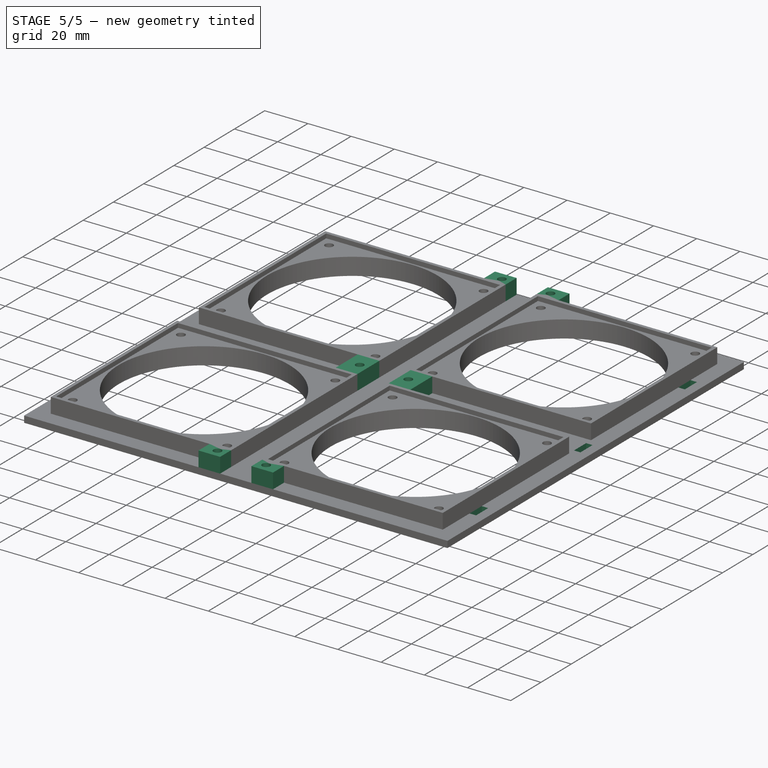
[diagram: stage 5 of 5 — iso view after this stage's code; geometry added in this stage tinted green]
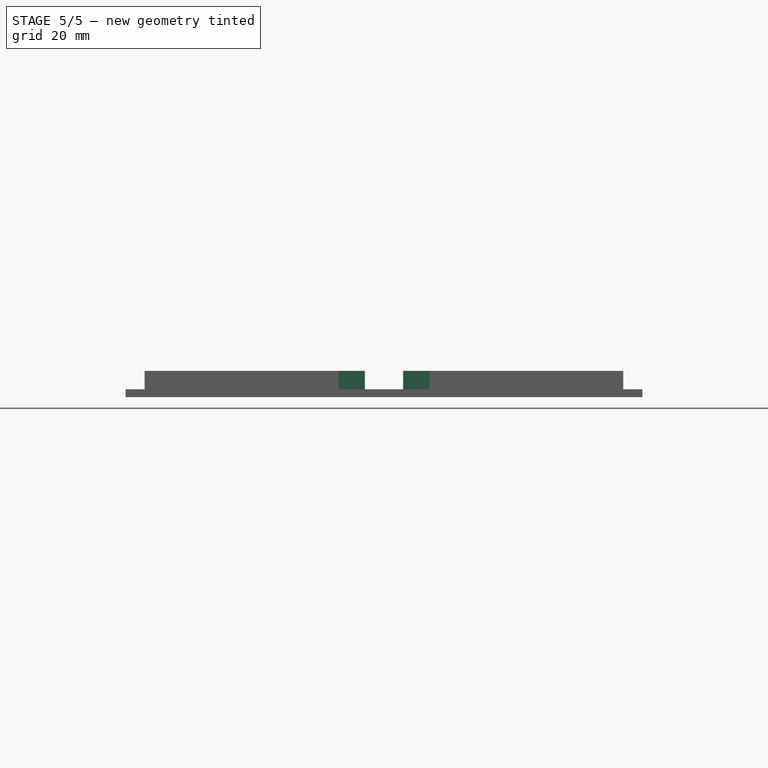
[diagram: stage 5 of 5 — front view after this stage's code; geometry added in this stage tinted green]
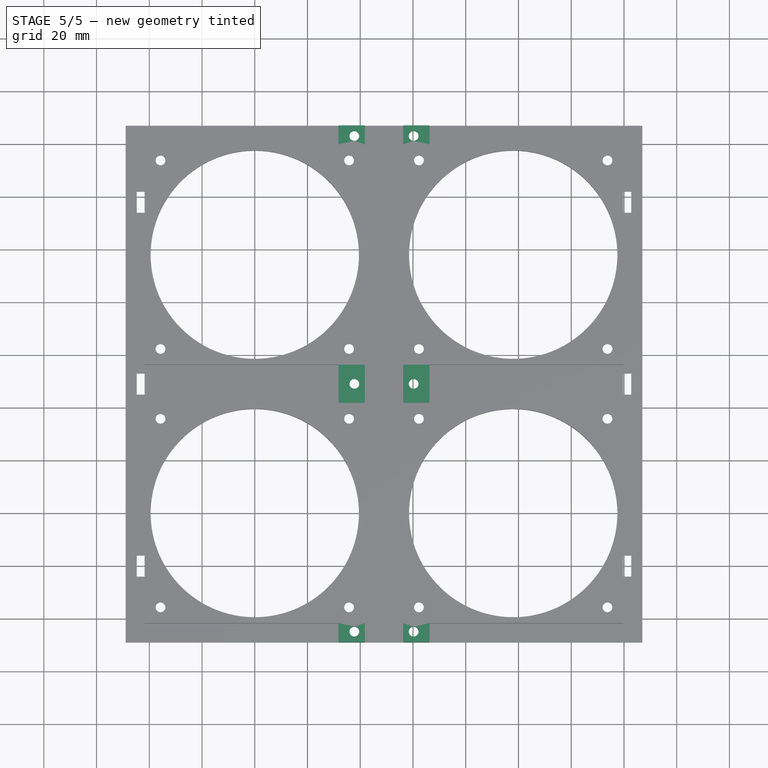
[diagram: stage 5 of 5 — top view after this stage's code; geometry added in this stage tinted green]
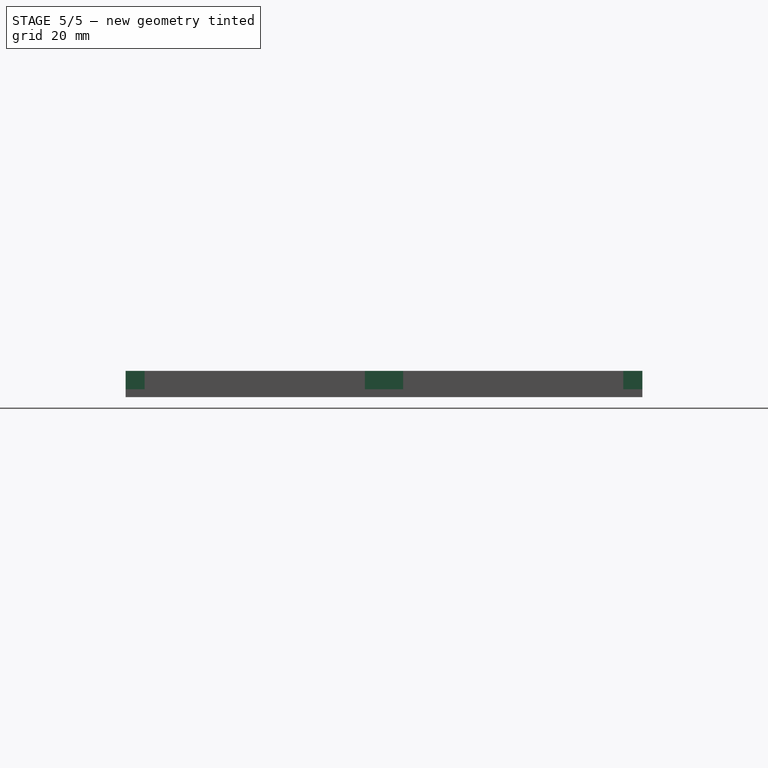
[diagram: stage 5 of 5 — right view after this stage's code; geometry added in this stage tinted green]
FEATURE [Sketcher::SketchObject] Sketch024
  ExternalGeometry = -> [BaseFeature]
  MapMode = 5
  Placement = pos=(0,0,3) rot=(0,0,1;0rad)
  Support = -> [BaseFeature]
  sketch-geometry (24):
    g0: LineSegment StartX=-44.75 StartY=-16 StartZ=0 EndX=-41.75 EndY=-16 EndZ=0
    g1: LineSegment StartX=-41.75 StartY=-16 StartZ=0 EndX=-41.75 EndY=-24 EndZ=0
    g2: LineSegment StartX=-41.75 StartY=-24 StartZ=0 EndX=-44.75 EndY=-24 EndZ=0
    g3: LineSegment StartX=-44.75 StartY=-24 StartZ=0 EndX=-44.75 EndY=-16 EndZ=0
    g4: LineSegment StartX=139.75 StartY=-16 StartZ=0 EndX=142.75 EndY=-16 EndZ=0
    g5: LineSegment StartX=142.75 StartY=-16 StartZ=0 EndX=142.75 EndY=-24 EndZ=0
    g6: LineSegment StartX=142.75 StartY=-24 StartZ=0 EndX=139.75 EndY=-24 EndZ=0
    g7: LineSegment StartX=139.75 StartY=-24 StartZ=0 EndX=139.75 EndY=-16 EndZ=0
    g8: LineSegment StartX=139.75 StartY=53 StartZ=0 EndX=142.75 EndY=53 EndZ=0
    g9: LineSegment StartX=142.75 StartY=53 StartZ=0 EndX=142.75 EndY=45 EndZ=0
    g10: LineSegment StartX=142.75 StartY=45 StartZ=0 EndX=139.75 EndY=45 EndZ=0
    g11: LineSegment StartX=139.75 StartY=45 StartZ=0 EndX=139.75 EndY=53 EndZ=0
    g12: LineSegment StartX=-44.75 StartY=53 StartZ=0 EndX=-41.75 EndY=53 EndZ=0
    g13: LineSegment StartX=-41.75 StartY=53 StartZ=0 EndX=-41.75 EndY=45 EndZ=0
    g14: LineSegment StartX=-41.75 StartY=45 StartZ=0 EndX=-44.75 EndY=45 EndZ=0
    g15: LineSegment StartX=-44.75 StartY=45 StartZ=0 EndX=-44.75 EndY=53 EndZ=0
    g16: LineSegment StartX=-44.75 StartY=122 StartZ=0 EndX=-41.75 EndY=122 EndZ=0
    g17: LineSegment StartX=-41.75 StartY=122 StartZ=0 EndX=-41.75 EndY=114 EndZ=0
    g18: LineSegment StartX=-41.75 StartY=114 StartZ=0 EndX=-44.75 EndY=114 EndZ=0
    g19: LineSegment StartX=-44.75 StartY=114 StartZ=0 EndX=-44.75 EndY=122 EndZ=0
    g20: LineSegment StartX=139.75 StartY=122 StartZ=0 EndX=142.75 EndY=122 EndZ=0
    g21: LineSegment StartX=142.75 StartY=122 StartZ=0 EndX=142.75 EndY=114 EndZ=0
    g22: LineSegment StartX=142.75 StartY=114 StartZ=0 EndX=139.75 EndY=114 EndZ=0
    g23: LineSegment StartX=139.75 StartY=114 StartZ=0 EndX=139.75 EndY=122 EndZ=0
  constraints (72):
    c: Coincident(g0,g1)
    c: Coincident(g1,g2)
    c: Coincident(g2,g3)
    c: Coincident(g3,g0)
    c: Horizontal(g0)
    c: Horizontal(g2)
    c: Vertical(g1)
    c: Vertical(g3)
    c: Coincident(g4,g5)
    c: Coincident(g5,g6)
    c: Coincident(g6,g7)
    c: Coincident(g7,g4)
    c: Horizontal(g4)
    c: Horizontal(g6)
    c: Vertical(g5)
    c: Vertical(g7)
    c: Coincident(g8,g9)
    c: Coincident(g9,g10)
    c: Coincident(g10,g11)
    c: Coincident(g11,g8)
    c: Horizontal(g8)
    c: Horizontal(g10)
    c: Vertical(g9)
    c: Vertical(g11)
    c: Coincident(g12,g13)
    c: Coincident(g13,g14)
    c: Coincident(g14,g15)
    c: Coincident(g15,g12)
    c: Horizontal(g12)
    c: Horizontal(g14)
    c: Vertical(g13)
    c: Vertical(g15)
    c: Coincident(g16,g17)
    c: Coincident(g17,g18)
    c: Coincident(g18,g19)
    c: Coincident(g19,g16)
    c: Horizontal(g16)
    c: Horizontal(g18)
    c: Vertical(g17)
    c: Vertical(g19)
    c: Coincident(g20,g21)
    c: Coincident(g21,g22)
    c: Coincident(g22,g23)
    c: Coincident(g23,g20)
    c: Horizontal(g20)
    c: Horizontal(g22)
    c: Vertical(g21)
    c: Vertical(g23)
    c: Equal(g20,g8)
    c: Equal(g8,g4)
    c: Equal(g4,g0)
    c: Equal(g0,g12)
    c: Equal(g12,g16)
    c: Equal(g17,g23)
    c: Equal(g23,g11)
    c: Equal(g11,g13)
    c: Equal(g13,g1)
    c: Equal(g1,g7)
    c: DistanceX(g0,g0) = 3
    c: DistanceY(g3,g3) = 8
    c: Horizontal(g1,g6)
    c: Horizontal(g10,g13)
    c: Horizontal(g16,g20)
    c: Vertical(g17,g13)
    c: Vertical(g13,g1)
    c: Vertical(g6,g10)
    c: Vertical(g10,g22)
    c: DistanceY(g-9,g12) = 4
    c: DistanceY(g-6,g2) = 25
    c: DistanceY(g16,g-3) = 25
    c: Vertical(g-8,g16)
    c: Vertical(g20,g-7)
FEATURE [PartDesign::Pocket] Pocket016
  BaseFeature = -> BaseFeature
  Length = 5
  Length2 = 100
  Profile = -> Sketch024
  Type = 0
FEATURE [Sketcher::SketchObject] Sketch025
  ExternalGeometry = -> [Pocket016]
  MapMode = 5
  Placement = pos=(0,41.75,0) rot=(0,0.707107,0.707107;3.14159rad)
  Support = -> [Pocket016]
  sketch-geometry (8):
    g0: LineSegment StartX=-66.25 StartY=3 StartZ=0 EndX=-56.25 EndY=3 EndZ=0
    g1: LineSegment StartX=-56.25 StartY=3 StartZ=0 EndX=-56.25 EndY=10 EndZ=0
    g2: LineSegment StartX=-56.25 StartY=10 StartZ=0 EndX=-66.25 EndY=10 EndZ=0
    g3: LineSegment StartX=-66.25 StartY=10 StartZ=0 EndX=-66.25 EndY=3 EndZ=0
    g4: LineSegment StartX=-31.75 StartY=3 StartZ=0 EndX=-41.75 EndY=3 EndZ=0
    g5: LineSegment StartX=-41.75 StartY=3 StartZ=0 EndX=-41.75 EndY=10 EndZ=0
    g6: LineSegment StartX=-41.75 StartY=10 StartZ=0 EndX=-31.75 EndY=10 EndZ=0
    g7: LineSegment StartX=-31.75 StartY=10 StartZ=0 EndX=-31.75 EndY=3 EndZ=0
  constraints (22):
    c: Coincident(g0,g1)
    c: Coincident(g1,g2)
    c: Coincident(g2,g3)
    c: Coincident(g3,g0)
    c: Horizontal(g0)
    c: Horizontal(g2)
    c: Vertical(g1)
    c: Vertical(g3)
    c: Coincident(g4,g5)
    c: Coincident(g5,g6)
    c: Coincident(g6,g7)
    c: Coincident(g7,g4)
    c: Horizontal(g4)
    c: Horizontal(g6)
    c: Vertical(g5)
    c: Vertical(g7)
    c: Coincident(g1,g-6)
    c: Coincident(g5,g-3)
    c: DistanceY(g-4,g4) = 0
    c: DistanceY(g-5,g0) = 0
    c: Equal(g2,g6)
    c: DistanceX(g2,g2) = 10
FEATURE [PartDesign::Pad] Pad008
  BaseFeature = -> Pocket016
  Length = 14.5
  Length2 = 100
  Profile = -> Sketch025
  Type = 0
FEATURE [Sketcher::SketchObject] Sketch026
  ExternalGeometry = -> [Pad008]
  MapMode = 5
  Placement = pos=(0,-41.75,0) rot=(1,0,0;1.5708rad)
  Support = -> [Pad008]
  sketch-geometry (8):
    g0: LineSegment StartX=31.75 StartY=3 StartZ=0 EndX=41.75 EndY=3 EndZ=0
    g1: LineSegment StartX=41.75 StartY=3 StartZ=0 EndX=41.75 EndY=10 EndZ=0
    g2: LineSegment StartX=41.75 StartY=10 StartZ=0 EndX=31.75 EndY=10 EndZ=0
    g3: LineSegment StartX=31.75 StartY=10 StartZ=0 EndX=31.75 EndY=3 EndZ=0
    g4: LineSegment StartX=56.25 StartY=3 StartZ=0 EndX=66.25 EndY=3 EndZ=0
    g5: LineSegment StartX=66.25 StartY=3 StartZ=0 EndX=66.25 EndY=10 EndZ=0
    g6: LineSegment StartX=66.25 StartY=10 StartZ=0 EndX=56.25 EndY=10 EndZ=0
    g7: LineSegment StartX=56.25 StartY=10 StartZ=0 EndX=56.25 EndY=3 EndZ=0
  constraints (22):
    c: Coincident(g0,g1)
    c: Coincident(g1,g2)
    c: Coincident(g2,g3)
    c: Coincident(g3,g0)
    c: Horizontal(g0)
    c: Horizontal(g2)
    c: Vertical(g1)
    c: Vertical(g3)
    c: Coincident(g4,g5)
    c: Coincident(g5,g6)
    c: Coincident(g6,g7)
    c: Coincident(g7,g4)
    c: Horizontal(g4)
    c: Horizontal(g6)
    c: Vertical(g5)
    c: Vertical(g7)
    c: Coincident(g6,g-4)
    c: Coincident(g1,g-3)
    c: Horizontal(g4,g0)
    c: DistanceY(g-5,g0) = 0
    c: DistanceX(g6,g6) = 10
    c: Equal(g2,g6)
FEATURE [PartDesign::Pad] Pad009
  BaseFeature = -> Pad008
  Length = 7.25
  Length2 = 100
  Profile = -> Sketch026
  Type = 0
FEATURE [Sketcher::SketchObject] Sketch027
  ExternalGeometry = -> [Pad009]
  MapMode = 5
  Placement = pos=(0,139.75,0) rot=(0,0.707107,0.707107;3.14159rad)
  Support = -> [Pad009]
  sketch-geometry (8):
    g0: LineSegment StartX=-66.25 StartY=3 StartZ=0 EndX=-56.25 EndY=3 EndZ=0
    g1: LineSegment StartX=-56.25 StartY=3 StartZ=0 EndX=-56.25 EndY=10 EndZ=0
    g2: LineSegment StartX=-56.25 StartY=10 StartZ=0 EndX=-66.25 EndY=10 EndZ=0
    g3: LineSegment StartX=-66.25 StartY=10 StartZ=0 EndX=-66.25 EndY=3 EndZ=0
    g4: LineSegment StartX=-41.75 StartY=3 StartZ=0 EndX=-31.75 EndY=3 EndZ=0
    g5: LineSegment StartX=-31.75 StartY=3 StartZ=0 EndX=-31.75 EndY=10 EndZ=0
    g6: LineSegment StartX=-31.75 StartY=10 StartZ=0 EndX=-41.75 EndY=10 EndZ=0
    g7: LineSegment StartX=-41.75 StartY=10 StartZ=0 EndX=-41.75 EndY=3 EndZ=0
  constraints (22):
    c: Coincident(g0,g1)
    c: Coincident(g1,g2)
    c: Coincident(g2,g3)
    c: Coincident(g3,g0)
    c: Horizontal(g0)
    c: Horizontal(g2)
    c: Vertical(g1)
    c: Vertical(g3)
    c: Coincident(g4,g5)
    c: Coincident(g5,g6)
    c: Coincident(g6,g7)
    c: Coincident(g7,g4)
    c: Horizontal(g4)
    c: Horizontal(g6)
    c: Vertical(g5)
    c: Vertical(g7)
    c: Coincident(g1,g-4)
    c: Coincident(g6,g-3)
    c: Horizontal(g0,g4)
    c: DistanceY(g-5,g0) = 0
    c: Equal(g2,g6)
    c: DistanceX(g2,g2) = 10
FEATURE [PartDesign::Pad] Pad010
  BaseFeature = -> Pad009
  Length = 7.25
  Length2 = 100
  Profile = -> Sketch027
  Type = 0
FEATURE [Sketcher::SketchObject] Sketch028
  ExternalGeometry = -> [Pad010]
  MapMode = 5
  Placement = pos=(0,2.2e-15,10) rot=(0,0,1;0rad)
  Support = -> [Pad010]
  sketch-geometry (6):
    g0: Circle CenterX=37.75 CenterY=-45 CenterZ=0 NormalX=0 NormalY=0 NormalZ=1 AngleXU=0 Radius=1.85
    g1: Circle CenterX=60.25 CenterY=-45 CenterZ=0 NormalX=0 NormalY=0 NormalZ=1 AngleXU=0 Radius=1.85
    g2: Circle CenterX=37.75 CenterY=143 CenterZ=0 NormalX=0 NormalY=0 NormalZ=1 AngleXU=0 Radius=1.85
    g3: Circle CenterX=60.25 CenterY=143 CenterZ=0 NormalX=0 NormalY=0 NormalZ=1 AngleXU=0 Radius=1.85
    g4: Circle CenterX=37.75 CenterY=49 CenterZ=0 NormalX=0 NormalY=0 NormalZ=1 AngleXU=0 Radius=1.85
    g5: Circle CenterX=60.25 CenterY=49 CenterZ=0 NormalX=0 NormalY=0 NormalZ=1 AngleXU=0 Radius=1.85
  constraints (18):
    c: Horizontal(g2,g3)
    c: Vertical(g2,g0)
    c: Vertical(g1,g3)
    c: DistanceY(g2,g-4) = 4
    c: DistanceX(g2,g-4) = 4
    c: DistanceX(g-3,g3) = 4
    c: DistanceY(g-5,g0) = 4
    c: Horizontal(g1,g0)
    c: Diameter(g0) = 3.7
    c: Equal(g0,g1)
    c: Equal(g0,g3)
    c: Equal(g0,g2)
    c: Equal(g5,g4)
    c: Equal(g4,g0)
    c: Horizontal(g-6,g4)
    c: Horizontal(g-6,g5)
    c: DistanceX(g-7,g5) = 4
    c: DistanceX(g4,g-8) = 4
FEATURE [PartDesign::Pocket] Pocket017
  BaseFeature = -> Pad010
  Length = 10
  Length2 = 100
  Profile = -> Sketch028
  Type = 0
FEATURE [Sketcher::SketchObject] Sketch029
  ExternalGeometry = -> [Pocket017]
  MapMode = 5
  Placement = pos=(0,0,0) rot=(1,0,0;3.14159rad)
  Support = -> [Pocket017]
  sketch-geometry (6):
    g0: Circle CenterX=37.75 CenterY=45 CenterZ=0 NormalX=0 NormalY=0 NormalZ=1 AngleXU=0 Radius=2.75
    g1: Circle CenterX=60.25 CenterY=45 CenterZ=0 NormalX=0 NormalY=0 NormalZ=1 AngleXU=0 Radius=2.75
    g2: Circle CenterX=37.75 CenterY=-49 CenterZ=0 NormalX=0 NormalY=0 NormalZ=1 AngleXU=0 Radius=2.75
    g3: Circle CenterX=60.25 CenterY=-49 CenterZ=0 NormalX=0 NormalY=0 NormalZ=1 AngleXU=0 Radius=2.75
    g4: Circle CenterX=37.75 CenterY=-143 CenterZ=0 NormalX=0 NormalY=0 NormalZ=1 AngleXU=0 Radius=2.75
    g5: Circle CenterX=60.25 CenterY=-143 CenterZ=0 NormalX=0 NormalY=0 NormalZ=1 AngleXU=0 Radius=2.75
  constraints (18):
    c: Horizontal(g1,g0)
    c: Horizontal(g2,g3)
    c: Horizontal(g5,g4)
    c: Vertical(g4,g2)
    c: Vertical(g2,g0)
    c: Vertical(g1,g3)
    c: Vertical(g3,g5)
    c: Diameter(g0) = 5.5
    c: Equal(g0,g1)
    c: Equal(g0,g2)
    c: Equal(g0,g3)
    c: Equal(g0,g5)
    c: Equal(g0,g4)
    c: DistanceY(g1,g-3) = 4
    c: DistanceX(g0,g-4) = 4
    c: DistanceX(g-5,g1) = 4
    c: DistanceY(g-6,g5) = 4
    c: Horizontal(g3,g-7)
FEATURE [PartDesign::Pocket] Pocket018
  BaseFeature = -> Pocket017
  Length = 5
  Length2 = 100
  Profile = -> Sketch029
  Type = 0
FEATURE [PartDesign::Chamfer] Chamfer004
  Base = -> Pocket018 [Edge11,Edge35,Edge3,Edge28,Edge51,Edge116]
  BaseFeature = -> Pocket018
  Size = 0.5
FEATURE [PartDesign::Chamfer] Chamfer005
  Base = -> Chamfer004 [Edge407,Edge405,Edge409,Edge473,Edge471,Edge469,Edge456,Edge457,Edge392,Edge439,Edge448,Edge412,Edge403,Edge278,Edge356,Edge358,Edge343,Edge342,Edge438,Edge359,Edge432,Edge449]
  BaseFeature = -> Chamfer004
  Size = 0.8
FEATURE [PartDesign::Body] Body004
  BaseFeature = -> Fusion
  Group = -> [BaseFeature,Sketch024,Pocket016,Sketch025,Pad008,Sketch026,Pad009,Sketch027,Pad010,Sketch028,Pocket017,Sketch029,Pocket018,Chamfer004,Chamfer005]
  Origin = -> Origin004
  Tip = -> Chamfer005
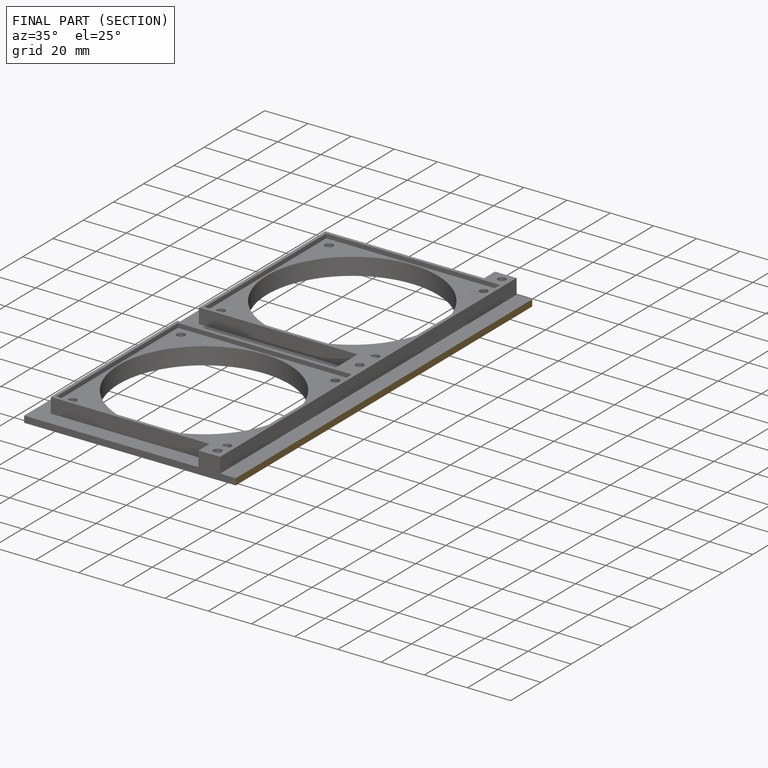
[diagram: finished part — half-section view (interior)]
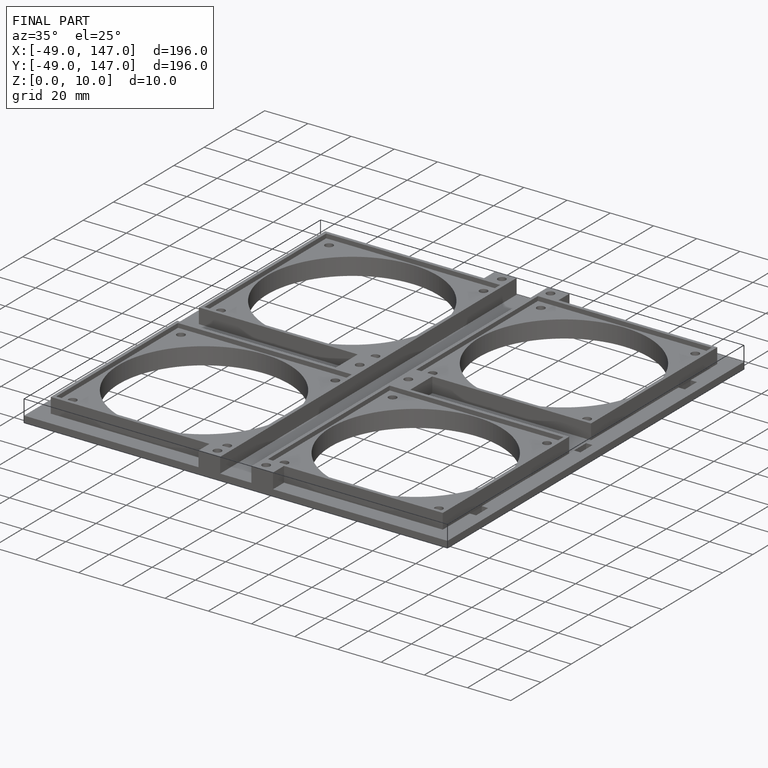
[diagram: finished part — iso view with bounding-box wireframe]
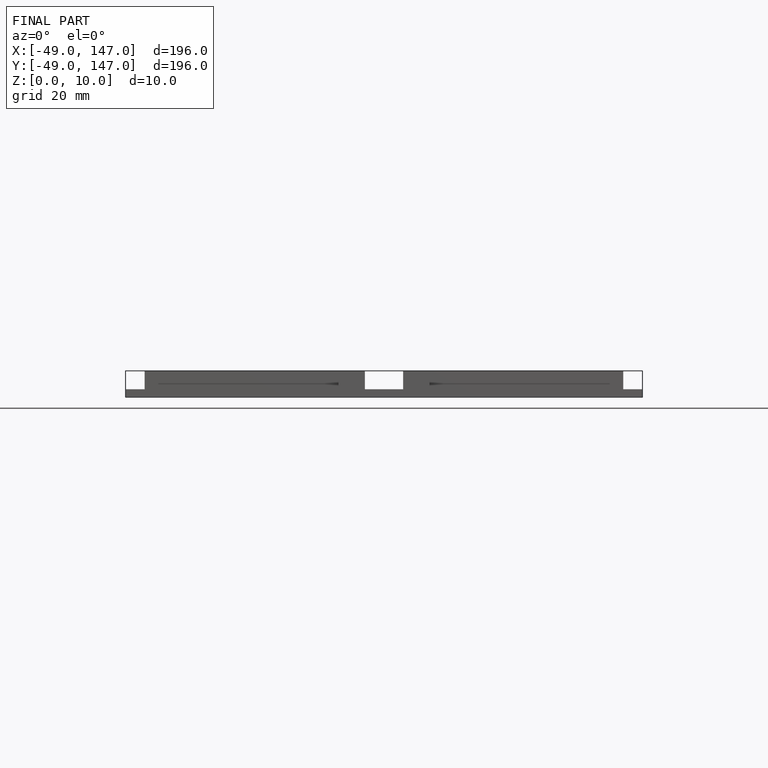
[diagram: finished part — front view with bounding-box wireframe]
